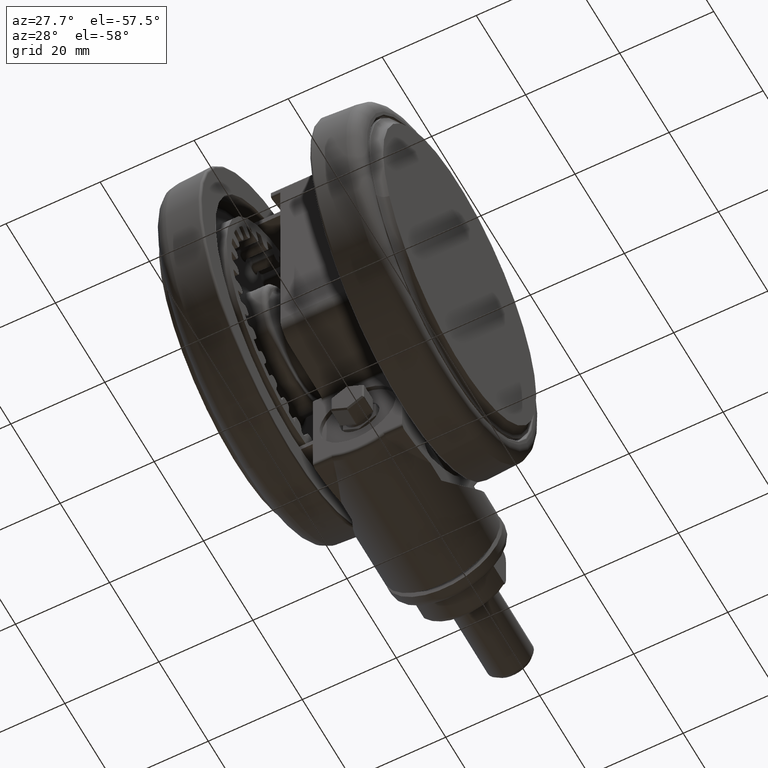
[diagram: clean part render]
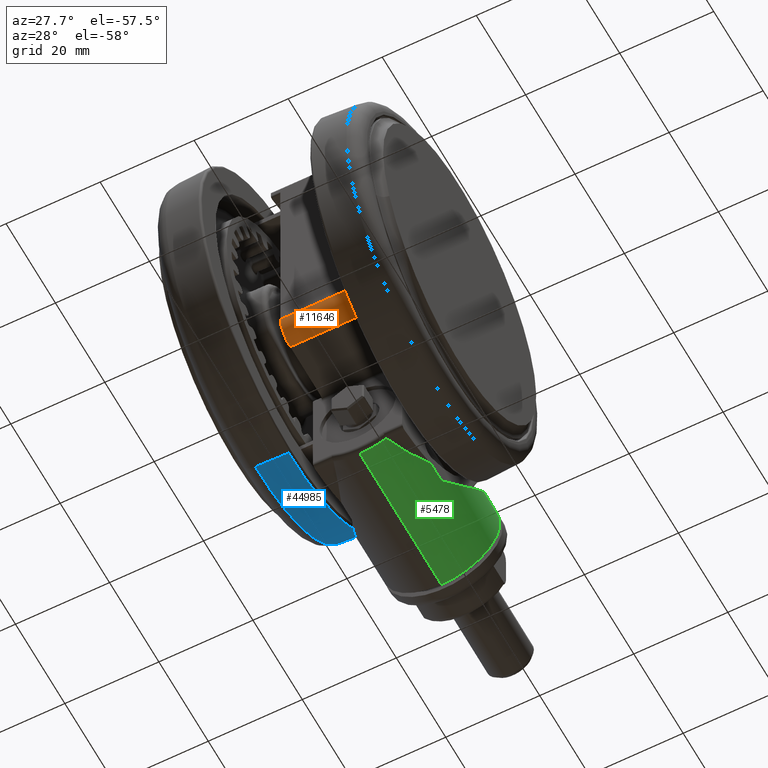
[diagram: same view with three faces highlighted in distinct colors, each labeled with its STEP entity id]
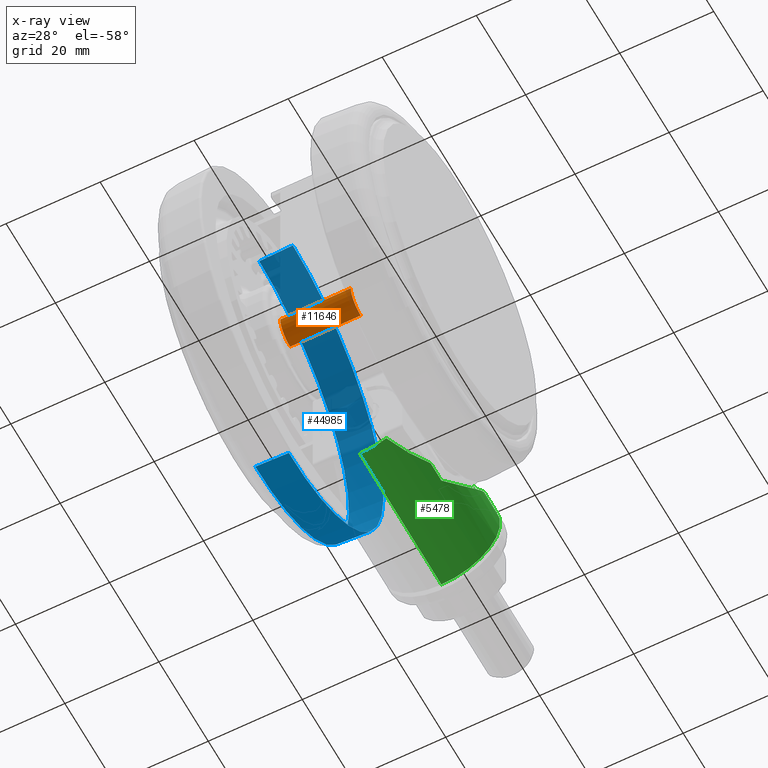
[diagram: x-ray of the same camera — body ghosted, the three highlighted faces saturated]
A machine part, auxiliary view with three faces highlighted in distinct colors.
The next image is the same camera in x-ray (body ghosted, the three faces saturated) — at least one of them is partly hidden behind the body in this view.
Their STEP definitions:

[orange] entity #11646 — the highlighted cylindrical surface (edge-blend (fillet) strip) has radius 4 mm, axis along (1, 0, 0).
#528 = CARTESIAN_POINT ( 'NONE',  ( -16.27201236271709200, -5.022112470622619000, -16.34999999999989800 ) ) ;
#2382 = AXIS2_PLACEMENT_3D ( 'NONE', #53404, #26597, #57941 ) ;
#4229 = ORIENTED_EDGE ( 'NONE', *, *, #23707, .F. ) ;
#5101 = DIRECTION ( 'NONE',  ( 0.0000000000000000000, 0.0000000000000000000, 1.000000000000000000 ) ) ;
#6492 = VECTOR ( 'NONE', #20359, 1000.000000000000000 ) ;
#10355 = EDGE_CURVE ( 'NONE', #35696, #19643, #26111, .T. ) ;
#11030 = AXIS2_PLACEMENT_3D ( 'NONE', #38438, #11631, #42942 ) ;
#11631 = DIRECTION ( 'NONE',  ( 0.0000000000000000000, 0.0000000000000000000, 1.000000000000000000 ) ) ;
#11646 = ADVANCED_FACE ( 'NONE', ( #55515 ), #19785, .T. ) ;
#12523 = CARTESIAN_POINT ( 'NONE',  ( -14.16063685898776600, -10.27016863288419800, -31.34999999999989800 ) ) ;
#13041 = CARTESIAN_POINT ( 'NONE',  ( -14.16063685898776600, -10.27016863288419800, -33.34999999999990200 ) ) ;
#13379 = ORIENTED_EDGE ( 'NONE', *, *, #25082, .F. ) ;
#17508 = DIRECTION ( 'NONE',  ( -0.0000000000000000000, -0.0000000000000000000, -1.000000000000000000 ) ) ;
#18415 = LINE ( 'NONE', #51683, #6492 ) ;
#18970 = LINE ( 'NONE', #13041, #41398 ) ;
#19643 = VERTEX_POINT ( 'NONE', #48403 ) ;
#19785 = CYLINDRICAL_SURFACE ( 'NONE', #27948, 4.000000000000000000 ) ;
#20359 = DIRECTION ( 'NONE',  ( 0.0000000000000000000, 0.0000000000000000000, 1.000000000000000000 ) ) ;
#23314 = EDGE_LOOP ( 'NONE', ( #31803, #13379, #48018, #4229 ) ) ;
#23707 = EDGE_CURVE ( 'NONE', #19643, #45964, #18415, .T. ) ;
#25082 = EDGE_CURVE ( 'NONE', #37163, #35696, #18970, .T. ) ;
#26111 = CIRCLE ( 'NONE', #2382, 4.000000000000000000 ) ;
#26133 = CIRCLE ( 'NONE', #11030, 4.000000000000000000 ) ;
#26597 = DIRECTION ( 'NONE',  ( 0.0000000000000000000, 0.0000000000000000000, -1.000000000000000000 ) ) ;
#27948 = AXIS2_PLACEMENT_3D ( 'NONE', #40970, #5101, #36470 ) ;
#31803 = ORIENTED_EDGE ( 'NONE', *, *, #10355, .F. ) ;
#35696 = VERTEX_POINT ( 'NONE', #12523 ) ;
#36470 = DIRECTION ( 'NONE',  ( -0.3920850823165320000, -0.9199289582488630000, 0.0000000000000000000 ) ) ;
#37163 = VERTEX_POINT ( 'NONE', #39174 ) ;
#38438 = CARTESIAN_POINT ( 'NONE',  ( -12.59229652972164000, -6.590452799888745400, -16.34999999999989800 ) ) ;
#39174 = CARTESIAN_POINT ( 'NONE',  ( -14.16063685898776600, -10.27016863288419800, -16.34999999999989800 ) ) ;
#40970 = CARTESIAN_POINT ( 'NONE',  ( -12.59229652972164000, -6.590452799888745400, -33.34999999999990200 ) ) ;
#41398 = VECTOR ( 'NONE', #17508, 1000.000000000000000 ) ;
#42942 = DIRECTION ( 'NONE',  ( -0.3920850823165320000, -0.9199289582488630000, 0.0000000000000000000 ) ) ;
#45964 = VERTEX_POINT ( 'NONE', #528 ) ;
#48018 = ORIENTED_EDGE ( 'NONE', *, *, #52088, .F. ) ;
#48403 = CARTESIAN_POINT ( 'NONE',  ( -16.27201236271709200, -5.022112470622619000, -31.34999999999989800 ) ) ;
#51683 = CARTESIAN_POINT ( 'NONE',  ( -16.27201236271709200, -5.022112470622619000, -33.34999999999990200 ) ) ;
#52088 = EDGE_CURVE ( 'NONE', #45964, #37163, #26133, .T. ) ;
#53404 = CARTESIAN_POINT ( 'NONE',  ( -12.59229652972164000, -6.590452799888745400, -31.34999999999989800 ) ) ;
#55515 = FACE_OUTER_BOUND ( 'NONE', #23314, .T. ) ;
#57941 = DIRECTION ( 'NONE',  ( 0.3920850823165320000, 0.9199289582488630000, 0.0000000000000000000 ) ) ;

[blue] entity #44985 — the highlighted conical surface has half-angle 3 deg.
#810 = AXIS2_PLACEMENT_3D ( 'NONE', #49215, #35729, #44752 ) ;
#4111 = ORIENTED_EDGE ( 'NONE', *, *, #7015, .T. ) ;
#4372 = CONICAL_SURFACE ( 'NONE', #810, 37.12628851691039200, 0.05235987755982334000 ) ;
#5237 = ORIENTED_EDGE ( 'NONE', *, *, #15781, .F. ) ;
#5764 = FACE_OUTER_BOUND ( 'NONE', #40535, .T. ) ;
#6188 = VERTEX_POINT ( 'NONE', #42929 ) ;
#7015 = EDGE_CURVE ( 'NONE', #6188, #25978, #19389, .T. ) ;
#8986 = LINE ( 'NONE', #17893, #55230 ) ;
#11419 = EDGE_CURVE ( 'NONE', #21024, #25978, #31026, .T. ) ;
#12039 = DIRECTION ( 'NONE',  ( -0.02155995805232607800, -0.04768878824885979700, 0.9986295347545742800 ) ) ;
#12753 = DIRECTION ( 'NONE',  ( 0.0000000000000000000, 0.0000000000000000000, -1.000000000000000000 ) ) ;
#13616 = CARTESIAN_POINT ( 'NONE',  ( -15.44824027307872200, -34.17018982190811000, -35.92616797812145500 ) ) ;
#15781 = EDGE_CURVE ( 'NONE', #49941, #21024, #24132, .T. ) ;
#17200 = ORIENTED_EDGE ( 'NONE', *, *, #11419, .F. ) ;
#17893 = CARTESIAN_POINT ( 'NONE',  ( 15.29428867884994300, 33.82966202682006700, -43.05700786872880300 ) ) ;
#19389 = CIRCLE ( 'NONE', #55967, 37.50000000000000700 ) ;
#20938 = EDGE_CURVE ( 'NONE', #49941, #6188, #8986, .T. ) ;
#21024 = VERTEX_POINT ( 'NONE', #50135 ) ;
#21759 = AXIS2_PLACEMENT_3D ( 'NONE', #39556, #12753, #44059 ) ;
#24132 = CIRCLE ( 'NONE', #21759, 37.12628851691039200 ) ;
#25300 = CARTESIAN_POINT ( 'NONE',  ( -15.29428867885000700, -33.82966202682013800, -43.05700786872880300 ) ) ;
#25978 = VERTEX_POINT ( 'NONE', #13616 ) ;
#26489 = DIRECTION ( 'NONE',  ( 0.0000000000000000000, 0.0000000000000000000, -1.000000000000000000 ) ) ;
#29602 = VECTOR ( 'NONE', #12039, 1000.000000000000100 ) ;
#31026 = LINE ( 'NONE', #25300, #29602 ) ;
#35729 = DIRECTION ( 'NONE',  ( -0.0000000000000000000, 0.0000000000000000000, 1.000000000000000000 ) ) ;
#39556 = CARTESIAN_POINT ( 'NONE',  ( -3.469446951953614200E-014, -3.469446951953614200E-014, -43.05700786872880300 ) ) ;
#40535 = EDGE_LOOP ( 'NONE', ( #5237, #42434, #4111, #17200 ) ) ;
#42434 = ORIENTED_EDGE ( 'NONE', *, *, #20938, .T. ) ;
#42929 = CARTESIAN_POINT ( 'NONE',  ( 15.44824027307865900, 34.17018982190803900, -35.92616797812145500 ) ) ;
#44059 = DIRECTION ( 'NONE',  ( 0.4119530739487650100, 0.9112050619175484600, 0.0000000000000000000 ) ) ;
#44752 = DIRECTION ( 'NONE',  ( -0.4119530739487650100, -0.9112050619175484600, 0.0000000000000000000 ) ) ;
#44894 = CARTESIAN_POINT ( 'NONE',  ( 15.29428867884993800, 33.82966202682006700, -43.05700786872880300 ) ) ;
#44985 = ADVANCED_FACE ( 'NONE', ( #5764 ), #4372, .T. ) ;
#49215 = CARTESIAN_POINT ( 'NONE',  ( -3.469446951953614200E-014, -3.469446951953614200E-014, -43.05700786872880300 ) ) ;
#49378 = DIRECTION ( 'NONE',  ( 0.02155995805232608500, 0.04768878824885979700, 0.9986295347545742800 ) ) ;
#49941 = VERTEX_POINT ( 'NONE', #44894 ) ;
#50135 = CARTESIAN_POINT ( 'NONE',  ( -15.29428867885000400, -33.82966202682013800, -43.05700786872880300 ) ) ;
#53307 = CARTESIAN_POINT ( 'NONE',  ( -3.469446951953614200E-014, -3.469446951953614200E-014, -35.92616797812145500 ) ) ;
#55230 = VECTOR ( 'NONE', #49378, 1000.000000000000100 ) ;
#55967 = AXIS2_PLACEMENT_3D ( 'NONE', #53307, #26489, #57835 ) ;
#57835 = DIRECTION ( 'NONE',  ( 0.4119530739487650100, 0.9112050619175484600, 0.0000000000000000000 ) ) ;

[green] entity #5478 — the highlighted cylindrical surface (partial cylindrical patch) has radius 12.5 mm, axis along (0, -1, 0).
#8 = CARTESIAN_POINT ( 'NONE',  ( 22.66250292775442400, -32.35555896070135200, -12.43901870895684200 ) ) ;
#193 = CARTESIAN_POINT ( 'NONE',  ( 8.558466214006276800, -38.60881370955682700, -12.89794383538071700 ) ) ;
#201 = VECTOR ( 'NONE', #30749, 999.9999999999998900 ) ;
#291 = CARTESIAN_POINT ( 'NONE',  ( 29.20481132818714100, -27.52090399684478700, -20.84466366442676500 ) ) ;
#314 = CARTESIAN_POINT ( 'NONE',  ( -9.882409998469958300, -36.17443854159574100, -18.20479131792697200 ) ) ;
#487 = CARTESIAN_POINT ( 'NONE',  ( 27.36476519821051700, -28.87383836560860200, -16.56426332098969600 ) ) ;
#491 = EDGE_CURVE ( 'NONE', #45375, #46858, #523, .T. ) ;
#523 = B_SPLINE_CURVE_WITH_KNOTS ( 'NONE', 3,
 ( #36175, #314, #53953, #9338 ),
 .UNSPECIFIED., .F., .F.,
 ( 4, 4 ),
 ( 0.0000000000000000000, 0.0001385659790266888500 ),
 .UNSPECIFIED. ) ;
#551 = LINE ( 'NONE', #33504, #34899 ) ;
#618 = VERTEX_POINT ( 'NONE', #49251 ) ;
#640 = EDGE_CURVE ( 'NONE', #2265, #20037, #1638, .T. ) ;
#688 = CARTESIAN_POINT ( 'NONE',  ( 24.83186235203199400, -29.29197393518422400, -14.96222662705271800 ) ) ;
#1638 = B_SPLINE_CURVE_WITH_KNOTS ( 'NONE', 3,
 ( #27107, #22407, #44979, #291, #31633, #4794, #36154, #9310, #40677, #13844, #45167, #18329, #49621, #22785, #54132, #27311, #487, #31832, #4994, #36351, #9505, #40857, #14041, #45344, #18529, #49809, #22995, #54323, #27505, #688, #32024, #5181, #36553, #9697, #41045 ),
 .UNSPECIFIED., .F., .F.,
 ( 4, 2, 2, 1, 1, 2, 2, 2, 1, 2, 2, 2, 1, 1, 1, 1, 2, 2, 1, 1, 1, 1, 4 ),
 ( 0.4996769114355315000, 0.6247576835766433000, 0.6325752318354628300, 0.6403927800942823500, 0.6560278766119209700, 0.6872980696471979700, 0.7498384557177522100, 0.7654735522353903800, 0.7811086487530286600, 0.8123788417883051100, 0.8749192278588575600, 0.8768736149235627500, 0.8788280019882677200, 0.8827367761176783100, 0.8905543243765000600, 0.9061894208941432300, 0.9374596139294295600, 0.9394140009941349700, 0.9413683880588401600, 0.9452771621882509700, 0.9530947104470721700, 0.9687298069647147800, 1.000000000000000000 ),
 .UNSPECIFIED. ) ;
#1957 = CARTESIAN_POINT ( 'NONE',  ( -8.047576973147602800, -36.63755342782558700, -17.64847011463574600 ) ) ;
#2005 = EDGE_CURVE ( 'NONE', #52490, #2265, #12172, .T. ) ;
#2098 = VECTOR ( 'NONE', #25658, 999.9999999999998900 ) ;
#2235 = CARTESIAN_POINT ( 'NONE',  ( 23.31428401112358600, -29.37165578230730700, -14.34769827546677800 ) ) ;
#2265 = VERTEX_POINT ( 'NONE', #24438 ) ;
#3028 = EDGE_CURVE ( 'NONE', #52068, #8448, #16392, .T. ) ;
#3321 = CARTESIAN_POINT ( 'NONE',  ( -9.838920298287710900, -36.18626324123486200, -18.19262737854695200 ) ) ;
#4502 = CARTESIAN_POINT ( 'NONE',  ( 23.31668263212594600, -29.36975163382753000, -14.34999999999990000 ) ) ;
#4528 = CARTESIAN_POINT ( 'NONE',  ( 21.48544207740459900, -33.14900644454169800, -11.97651548264947500 ) ) ;
#4707 = CARTESIAN_POINT ( 'NONE',  ( 4.930159462539856800, -39.19111541757814600, -14.34654799559195800 ) ) ;
#4794 = CARTESIAN_POINT ( 'NONE',  ( 29.16997050767032500, -27.55787948304757900, -20.65829342374514300 ) ) ;
#4994 = CARTESIAN_POINT ( 'NONE',  ( 26.42804262372865800, -29.08659917187923200, -15.84968783692747300 ) ) ;
#5181 = CARTESIAN_POINT ( 'NONE',  ( 24.49248942067594800, -29.31797930364726700, -14.80904340306899400 ) ) ;
#5233 = CARTESIAN_POINT ( 'NONE',  ( -9.968634172649906600, -36.14122517971745900, -18.21123958841919000 ) ) ;
#5268 = EDGE_CURVE ( 'NONE', #11251, #618, #551, .T. ) ;
#5312 = EDGE_CURVE ( 'NONE', #47955, #27663, #9663, .T. ) ;
#5478 = ADVANCED_FACE ( 'NONE', ( #13204 ), #35583, .T. ) ;
#6334 = CARTESIAN_POINT ( 'NONE',  ( 23.31308438640588300, -29.37260792630304000, -14.34654799560086900 ) ) ;
#6389 = EDGE_CURVE ( 'NONE', #47955, #52490, #22240, .T. ) ;
#6472 = CARTESIAN_POINT ( 'NONE',  ( -5.375620969938281300, -37.12361168986900900, -16.69575081813920600 ) ) ;
#7356 = CARTESIAN_POINT ( 'NONE',  ( 0.9252950319632753400, -37.48858264997260600, -14.34999999999990000 ) ) ;
#8448 = VERTEX_POINT ( 'NONE', #7356 ) ;
#8622 = DIRECTION ( 'NONE',  ( -0.9199289582488630000, 0.3920850823165320000, 0.0000000000000000000 ) ) ;
#9025 = CARTESIAN_POINT ( 'NONE',  ( 19.42277607115257300, -34.40909919356519000, -11.48061234786702800 ) ) ;
#9042 = ORIENTED_EDGE ( 'NONE', *, *, #5268, .T. ) ;
#9310 = CARTESIAN_POINT ( 'NONE',  ( 29.04385837673793300, -27.69095264748567000, -20.05295726341705300 ) ) ;
#9338 = CARTESIAN_POINT ( 'NONE',  ( -9.968634172649906600, -36.14122517971745900, -18.21123958841919000 ) ) ;
#9505 = CARTESIAN_POINT ( 'NONE',  ( 26.38844356317489900, -29.09395007485297300, -15.82300875197052300 ) ) ;
#9663 = LINE ( 'NONE', #42893, #20143 ) ;
#9697 = CARTESIAN_POINT ( 'NONE',  ( 23.60577569781473900, -29.36313950020495200, -14.45213350522544000 ) ) ;
#9998 = CARTESIAN_POINT ( 'NONE',  ( 29.66415180218153200, -27.31827406439273900, -23.84999999999985200 ) ) ;
#10283 = ORIENTED_EDGE ( 'NONE', *, *, #49195, .T. ) ;
#10998 = CARTESIAN_POINT ( 'NONE',  ( -2.691874596266542700, -37.41418932212195600, -15.68238596931576700 ) ) ;
#11251 = VERTEX_POINT ( 'NONE', #6334 ) ;
#12172 = LINE ( 'NONE', #35473, #201 ) ;
#13204 = FACE_OUTER_BOUND ( 'NONE', #19472, .T. ) ;
#13578 = CARTESIAN_POINT ( 'NONE',  ( 17.66706106289678900, -35.33226691023542500, -11.35163379551320200 ) ) ;
#13844 = CARTESIAN_POINT ( 'NONE',  ( 28.76201439406101900, -27.98267684534257800, -19.00912385999964400 ) ) ;
#13926 = EDGE_CURVE ( 'NONE', #45375, #8448, #37368, .T. ) ;
#14041 = CARTESIAN_POINT ( 'NONE',  ( 26.24848674829535300, -29.11902976308429200, -15.73062577244991200 ) ) ;
#14054 = DIRECTION ( 'NONE',  ( -0.9199289582488630000, 0.3920850823165320000, 0.0000000000000000000 ) ) ;
#14252 = CARTESIAN_POINT ( 'NONE',  ( 24.76308827322488400, -38.81738604250352200, -23.84999999999985200 ) ) ;
#14955 = EDGE_CURVE ( 'NONE', #46858, #27663, #25740, .T. ) ;
#15521 = CARTESIAN_POINT ( 'NONE',  ( 0.02110193596462646800, -37.51089998822661900, -14.67072933138166700 ) ) ;
#16157 = AXIS2_PLACEMENT_3D ( 'NONE', #50767, #23943, #55286 ) ;
#16392 = B_SPLINE_CURVE_WITH_KNOTS ( 'NONE', 3,
 ( #48720, #34846, #30700, #21878 ),
 .UNSPECIFIED., .F., .F.,
 ( 4, 4 ),
 ( 0.02513255973794679600, 0.02514281156387576000 ),
 .UNSPECIFIED. ) ;
#17858 = CARTESIAN_POINT ( 'NONE',  ( 24.78200206689732700, -30.76904332859885500, -13.74103255576278400 ) ) ;
#18054 = CARTESIAN_POINT ( 'NONE',  ( 16.33101420197844400, -35.96926918354813600, -11.36368929508307500 ) ) ;
#18329 = CARTESIAN_POINT ( 'NONE',  ( 28.40541583139583200, -28.33964729604600300, -18.03722452611911800 ) ) ;
#18529 = CARTESIAN_POINT ( 'NONE',  ( 25.62255553552599000, -29.21446435662012700, -15.35253948476875000 ) ) ;
#19381 = VERTEX_POINT ( 'NONE', #47067 ) ;
#19472 = EDGE_LOOP ( 'NONE', ( #30737, #27219, #29776, #10283, #9042, #48792, #46296, #56170, #37783, #50815, #49264, #54162 ) ) ;
#19783 = CARTESIAN_POINT ( 'NONE',  ( -8.939369643000450300, -36.43084796507443500, -17.94102574426757700 ) ) ;
#20037 = VERTEX_POINT ( 'NONE', #4502 ) ;
#20143 = VECTOR ( 'NONE', #38393, 999.9999999999998900 ) ;
#21878 = CARTESIAN_POINT ( 'NONE',  ( 0.9252950319632753400, -37.48858264997260600, -14.34999999999990000 ) ) ;
#22240 = CIRCLE ( 'NONE', #25173, 12.49999999999999800 ) ;
#22407 = CARTESIAN_POINT ( 'NONE',  ( 29.46994141877284800, -27.23549920065708800, -22.84462937589613000 ) ) ;
#22511 = CARTESIAN_POINT ( 'NONE',  ( 14.07800607944254000, -36.91886333825158300, -11.57232519769639000 ) ) ;
#22785 = CARTESIAN_POINT ( 'NONE',  ( 28.25633415388930200, -28.45681878934140100, -17.73119965019458600 ) ) ;
#22995 = CARTESIAN_POINT ( 'NONE',  ( 24.92552523292591700, -29.28403882434345100, -15.00601695592809600 ) ) ;
#23943 = DIRECTION ( 'NONE',  ( 0.9199289582488630000, -0.3920850823165320000, 0.0000000000000000000 ) ) ;
#24438 = CARTESIAN_POINT ( 'NONE',  ( 29.46994308100311200, -27.23549990460441400, -23.84999999999983800 ) ) ;
#25173 = AXIS2_PLACEMENT_3D ( 'NONE', #35470, #8622, #39995 ) ;
#25428 = EDGE_CURVE ( 'NONE', #19381, #52068, #49734, .T. ) ;
#25658 = DIRECTION ( 'NONE',  ( -0.9199289582488630000, 0.3920850823165320500, 0.0000000000000000000 ) ) ;
#25740 = CIRCLE ( 'NONE', #16157, 12.50000000000000000 ) ;
#26824 = CARTESIAN_POINT ( 'NONE',  ( 23.03664868890705400, -32.08991529524130500, -12.62237326224486500 ) ) ;
#27016 = CARTESIAN_POINT ( 'NONE',  ( 11.31851900217184200, -37.85565463172399300, -12.12724328409385600 ) ) ;
#27107 = CARTESIAN_POINT ( 'NONE',  ( 29.46994308100311200, -27.23549990460441400, -23.84999999999983800 ) ) ;
#27219 = ORIENTED_EDGE ( 'NONE', *, *, #2005, .T. ) ;
#27311 = CARTESIAN_POINT ( 'NONE',  ( 27.86621615589254500, -28.67606848673524300, -17.13550476935125400 ) ) ;
#27505 = CARTESIAN_POINT ( 'NONE',  ( 24.87959204858776400, -29.28796210245716800, -14.98447742585981900 ) ) ;
#27663 = VERTEX_POINT ( 'NONE', #34302 ) ;
#28687 = CARTESIAN_POINT ( 'NONE',  ( 23.31548342637228900, -29.37070368477839100, -14.34884894354390100 ) ) ;
#28877 = CARTESIAN_POINT ( 'NONE',  ( 23.31668263212594600, -29.36975163382753000, -14.34999999999990000 ) ) ;
#29776 = ORIENTED_EDGE ( 'NONE', *, *, #640, .T. ) ;
#30700 = CARTESIAN_POINT ( 'NONE',  ( 0.9285394389109580300, -37.48850257136151500, -14.34884916565304800 ) ) ;
#30737 = ORIENTED_EDGE ( 'NONE', *, *, #6389, .T. ) ;
#30749 = DIRECTION ( 'NONE',  ( -0.9199289582488630000, 0.3920850823165320500, 0.0000000000000000000 ) ) ;
#31345 = CARTESIAN_POINT ( 'NONE',  ( 21.88562291940069200, -32.88602657725167000, -12.11544611505337200 ) ) ;
#31546 = CARTESIAN_POINT ( 'NONE',  ( 6.737728561777758300, -38.96372704641672200, -13.56226829896612300 ) ) ;
#31633 = CARTESIAN_POINT ( 'NONE',  ( 29.19315823979032500, -27.53328508382044500, -20.78090547420896800 ) ) ;
#31832 = CARTESIAN_POINT ( 'NONE',  ( 26.94590930944639200, -28.98868621264434300, -16.20237817685914900 ) ) ;
#32024 = CARTESIAN_POINT ( 'NONE',  ( 24.71974011124244800, -29.30103997053691600, -14.91067650727147300 ) ) ;
#32967 = B_SPLINE_CURVE_WITH_KNOTS ( 'NONE', 3,
 ( #28877, #28687, #2235, #33590 ),
 .UNSPECIFIED., .F., .F.,
 ( 4, 4 ),
 ( 0.0000000000000000000, 5.654332367517219900E-006 ),
 .UNSPECIFIED. ) ;
#33296 = CARTESIAN_POINT ( 'NONE',  ( -6.265654378729885300, -36.98398831280658100, -17.02599872651548600 ) ) ;
#33504 = CARTESIAN_POINT ( 'NONE',  ( 27.94681914163717800, -31.34756290151792500, -14.34654799560087900 ) ) ;
#33590 = CARTESIAN_POINT ( 'NONE',  ( 23.31308438640588300, -29.37260792630304000, -14.34654799560086900 ) ) ;
#33748 = CARTESIAN_POINT ( 'NONE',  ( 0.9350282310641288000, -37.48834115037787700, -14.34654799559192800 ) ) ;
#34302 = CARTESIAN_POINT ( 'NONE',  ( -10.49563087794424900, -37.37769030416875200, -23.84999999999985200 ) ) ;
#34846 = CARTESIAN_POINT ( 'NONE',  ( 0.9317838385842407400, -37.48842207149811400, -14.34769849742418500 ) ) ;
#34899 = VECTOR ( 'NONE', #51472, 999.9999999999998900 ) ;
#35470 = CARTESIAN_POINT ( 'NONE',  ( 24.76308827322488400, -38.81738604250352200, -23.84999999999985200 ) ) ;
#35473 = CARTESIAN_POINT ( 'NONE',  ( 29.66415180218153200, -27.31827406439273900, -23.84999999999985200 ) ) ;
#35583 = CYLINDRICAL_SURFACE ( 'NONE', #41660, 12.49999999999999800 ) ;
#35873 = CARTESIAN_POINT ( 'NONE',  ( 20.26643726242849300, -33.91820925071287000, -11.62705444279575500 ) ) ;
#36154 = CARTESIAN_POINT ( 'NONE',  ( 29.13419837066379600, -27.59576271394194400, -20.47511163794530700 ) ) ;
#36175 = CARTESIAN_POINT ( 'NONE',  ( -9.838920298287710900, -36.18626324123486200, -18.19262737854695200 ) ) ;
#36351 = CARTESIAN_POINT ( 'NONE',  ( 26.41605657139349000, -29.08883783971181800, -15.84158351494477700 ) ) ;
#36553 = CARTESIAN_POINT ( 'NONE',  ( 24.02600726054022200, -29.34698365095140800, -14.61159278328556100 ) ) ;
#37368 = B_SPLINE_CURVE_WITH_KNOTS ( 'NONE', 3,
 ( #46621, #19783, #1957, #33296, #6472, #37810, #10998, #42313, #15521, #46804 ),
 .UNSPECIFIED., .F., .F.,
 ( 4, 2, 2, 2, 4 ),
 ( 0.001168786101779600400, 0.004046430306325157200, 0.006924074510870711700, 0.009801718715416265400, 0.01267936291996182200 ),
 .UNSPECIFIED. ) ;
#37783 = ORIENTED_EDGE ( 'NONE', *, *, #13926, .F. ) ;
#37810 = CARTESIAN_POINT ( 'NONE',  ( -3.588694864286535500, -37.33873477882804100, -16.02406071253404800 ) ) ;
#38393 = DIRECTION ( 'NONE',  ( -0.9199289582488630000, 0.3920850823165320500, 0.0000000000000000000 ) ) ;
#39995 = DIRECTION ( 'NONE',  ( -0.3920850823165320500, -0.9199289582488630000, 0.0000000000000000000 ) ) ;
#40387 = CARTESIAN_POINT ( 'NONE',  ( 18.11152963872072500, -35.10651760786633000, -11.36999533167786100 ) ) ;
#40677 = CARTESIAN_POINT ( 'NONE',  ( 28.95485826367333000, -27.78369131825804300, -19.70052890635582400 ) ) ;
#40857 = CARTESIAN_POINT ( 'NONE',  ( 26.34684091830020600, -29.10157196729723600, -15.79519409571200600 ) ) ;
#41045 = CARTESIAN_POINT ( 'NONE',  ( 23.31668263212594600, -29.36975163382753000, -14.34999999999990000 ) ) ;
#41660 = AXIS2_PLACEMENT_3D ( 'NONE', #14252, #14054, #45556 ) ;
#42313 = CARTESIAN_POINT ( 'NONE',  ( -0.8853407350264429500, -37.50045230735907600, -15.00513446580412200 ) ) ;
#42893 = CARTESIAN_POINT ( 'NONE',  ( 19.86202474426823300, -50.31649802061431100, -23.84999999999985200 ) ) ;
#44897 = CARTESIAN_POINT ( 'NONE',  ( 16.77774446726649100, -35.76312936821035700, -11.34857666086773300 ) ) ;
#44979 = CARTESIAN_POINT ( 'NONE',  ( 29.38333142184239900, -27.33097615111210700, -21.85375921167916500 ) ) ;
#45167 = CARTESIAN_POINT ( 'NONE',  ( 28.61366092978293100, -28.13334327560058400, -18.56616766091367800 ) ) ;
#45344 = CARTESIAN_POINT ( 'NONE',  ( 26.04665783428974300, -29.15262772125807800, -15.60282020329314700 ) ) ;
#45375 = VERTEX_POINT ( 'NONE', #3321 ) ;
#45556 = DIRECTION ( 'NONE',  ( -0.3920850823165320500, -0.9199289582488630000, 0.0000000000000000000 ) ) ;
#46296 = ORIENTED_EDGE ( 'NONE', *, *, #25428, .T. ) ;
#46621 = CARTESIAN_POINT ( 'NONE',  ( -9.838920298287710900, -36.18626324123486200, -18.19262737854695200 ) ) ;
#46804 = CARTESIAN_POINT ( 'NONE',  ( 0.9252950319632753400, -37.48858264997260600, -14.34999999999990000 ) ) ;
#46858 = VERTEX_POINT ( 'NONE', #5233 ) ;
#47067 = CARTESIAN_POINT ( 'NONE',  ( 4.930159462539856800, -39.19111541757814600, -14.34654799559195800 ) ) ;
#47813 = EDGE_CURVE ( 'NONE', #618, #19381, #51960, .T. ) ;
#47955 = VERTEX_POINT ( 'NONE', #54825 ) ;
#48720 = CARTESIAN_POINT ( 'NONE',  ( 0.9350282310641288000, -37.48834115037787700, -14.34654799559192800 ) ) ;
#48792 = ORIENTED_EDGE ( 'NONE', *, *, #47813, .T. ) ;
#49161 = CARTESIAN_POINT ( 'NONE',  ( 25.39081661291547900, -30.25816305940098900, -14.34654799560087900 ) ) ;
#49195 = EDGE_CURVE ( 'NONE', #20037, #11251, #32967, .T. ) ;
#49251 = CARTESIAN_POINT ( 'NONE',  ( 25.39081661291547900, -30.25816305940098900, -14.34654799560087900 ) ) ;
#49264 = ORIENTED_EDGE ( 'NONE', *, *, #14955, .T. ) ;
#49351 = CARTESIAN_POINT ( 'NONE',  ( 14.98437326665872500, -36.56063401611770300, -11.45348235776330600 ) ) ;
#49621 = CARTESIAN_POINT ( 'NONE',  ( 28.35971483303391600, -28.37897514263889300, -17.93542093854425100 ) ) ;
#49734 = LINE ( 'NONE', #56981, #2098 ) ;
#49809 = CARTESIAN_POINT ( 'NONE',  ( 25.22412066839993700, -29.25797705747123700, -15.14716744873108900 ) ) ;
#50767 = CARTESIAN_POINT ( 'NONE',  ( -5.594567348987595800, -25.87857832605796600, -23.84999999999985200 ) ) ;
#50815 = ORIENTED_EDGE ( 'NONE', *, *, #491, .T. ) ;
#51472 = DIRECTION ( 'NONE',  ( 0.9199289582488630000, -0.3920850823165320500, -0.0000000000000000000 ) ) ;
#51960 = B_SPLINE_CURVE_WITH_KNOTS ( 'NONE', 3,
 ( #49161, #17858, #53647, #26824, #8, #31345, #4528, #35873, #9025, #40387, #13578, #44897, #18054, #49351, #22511, #53837, #27016, #193, #31546, #4707 ),
 .UNSPECIFIED., .F., .F.,
 ( 4, 2, 2, 2, 2, 2, 2, 2, 2, 4 ),
 ( 2.453269466693398600E-017, 0.002949696317115271900, 0.004424544475672895000, 0.005899392634230518600, 0.008849088951345764100, 0.01032393710990338500, 0.01179878526846100800, 0.01474848158557624600, 0.01769817790269148600, 0.02359757053692197000 ),
 .UNSPECIFIED. ) ;
#52068 = VERTEX_POINT ( 'NONE', #33748 ) ;
#52490 = VERTEX_POINT ( 'NONE', #9998 ) ;
#53647 = CARTESIAN_POINT ( 'NONE',  ( 24.11719272140011200, -31.29553324559880400, -13.24000522865224600 ) ) ;
#53837 = CARTESIAN_POINT ( 'NONE',  ( 12.24711182085247100, -37.56595503123612900, -11.90843218864362100 ) ) ;
#53953 = CARTESIAN_POINT ( 'NONE',  ( -9.925653904101906700, -36.15954390094101000, -18.21123958841919000 ) ) ;
#54132 = CARTESIAN_POINT ( 'NONE',  ( 28.08523272284655500, -28.57081064621789000, -17.42821774746800000 ) ) ;
#54162 = ORIENTED_EDGE ( 'NONE', *, *, #5312, .F. ) ;
#54323 = CARTESIAN_POINT ( 'NONE',  ( 24.91134006987837400, -29.28525961806190400, -14.99934645520407300 ) ) ;
#54825 = CARTESIAN_POINT ( 'NONE',  ( 19.86202474426823300, -50.31649802061431100, -23.84999999999985200 ) ) ;
#55286 = DIRECTION ( 'NONE',  ( 0.3920850823165320000, 0.9199289582488630000, 0.0000000000000000000 ) ) ;
#56170 = ORIENTED_EDGE ( 'NONE', *, *, #3028, .T. ) ;
#56981 = CARTESIAN_POINT ( 'NONE',  ( 21.57935740481670100, -46.28720918347946200, -14.34654799559195800 ) ) ;